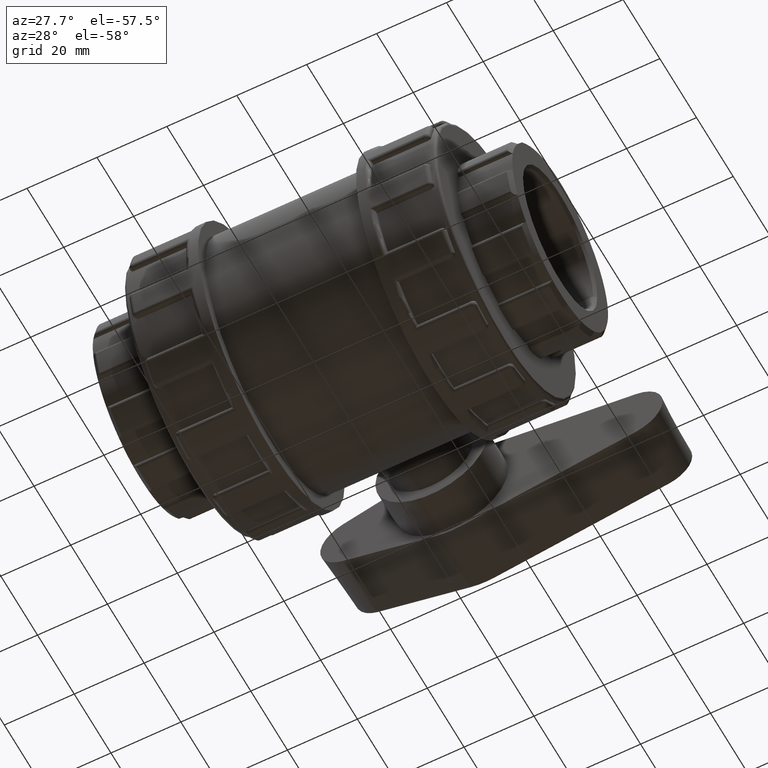
[diagram: clean part render]
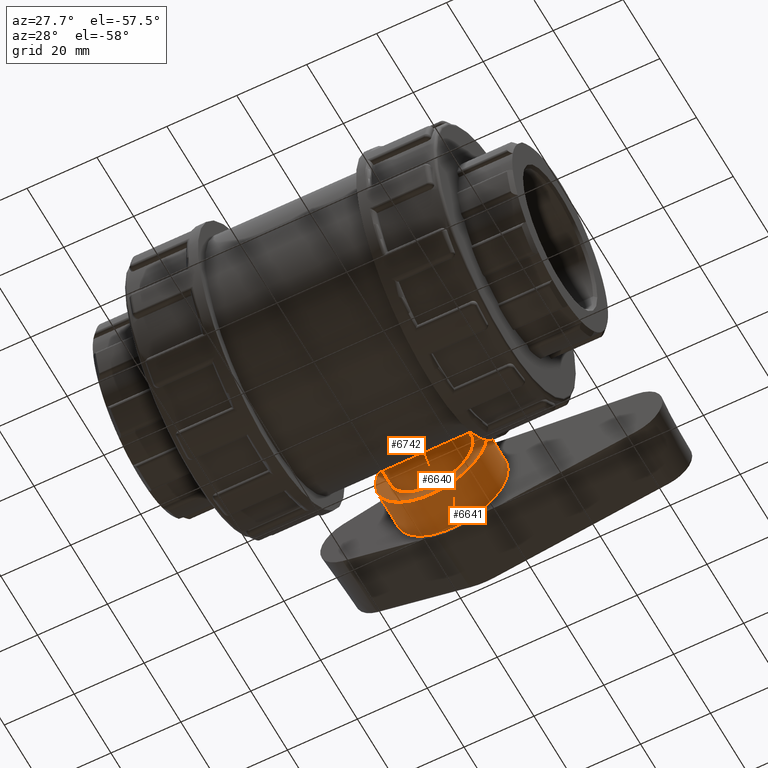
[diagram: same view with one multi-face feature highlighted, each face labeled with its STEP entity id]
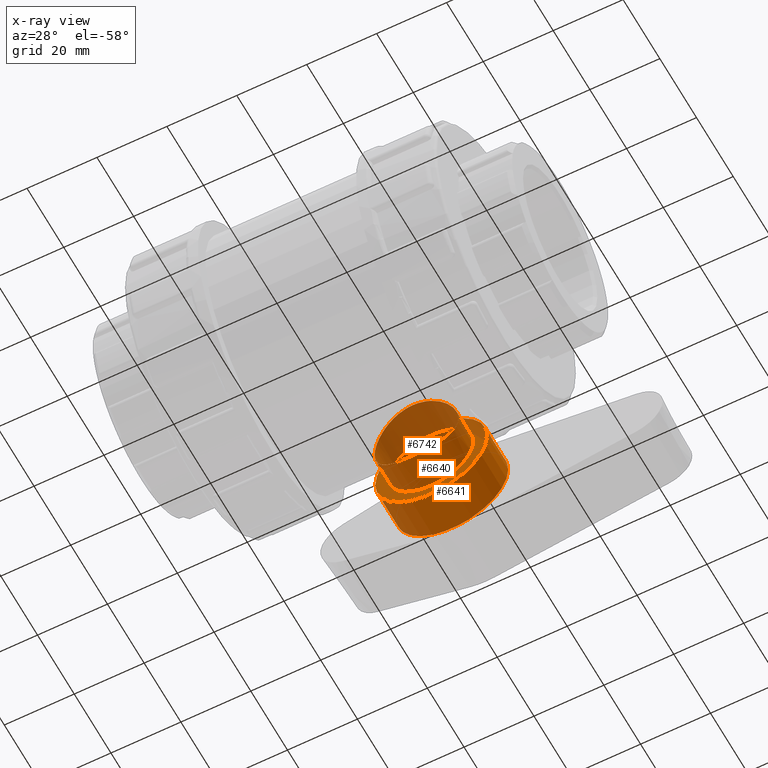
[diagram: x-ray of the same camera — body ghosted, the whole feature saturated]
A machine part, auxiliary view. The highlighted faces form ONE feature: a stepped (counterbored) hole: 2 coaxial cylindrical walls of radii 12 -> 16 mm joined by 1 annular planar shoulder face(s). The faces share edges in the B-rep.
The next image is the same camera in x-ray: the body ghosted and the whole hole feature saturated, so the bore chain is visible through the body.
Their STEP definitions:
[1] entity #6641 (Cylinder):
#203=FACE_BOUND('',#882,.T.);
#444=FACE_OUTER_BOUND('',#881,.T.);
#881=EDGE_LOOP('',(#4428));
#882=EDGE_LOOP('',(#4429));
#2130=CIRCLE('',#7096,16.);
#2131=CIRCLE('',#7102,16.);
#2657=VERTEX_POINT('',#10411);
#2658=VERTEX_POINT('',#10421);
#3318=EDGE_CURVE('',#2657,#2657,#2130,.T.);
#3322=EDGE_CURVE('',#2658,#2658,#2131,.T.);
#4428=ORIENTED_EDGE('',*,*,#3318,.T.);
#4429=ORIENTED_EDGE('',*,*,#3322,.T.);
#6431=CYLINDRICAL_SURFACE('',#7104,16.);
#6641=ADVANCED_FACE('',(#444,#203),#6431,.T.);
#7096=AXIS2_PLACEMENT_3D('',#10412,#8119,#8120);
#7102=AXIS2_PLACEMENT_3D('',#10422,#8134,#8135);
#7104=AXIS2_PLACEMENT_3D('',#10425,#8138,#8139);
#8119=DIRECTION('center_axis',(4.4520067609193E-16,-1.,0.));
#8120=DIRECTION('ref_axis',(-1.,-6.3902435668651E-16,0.));
#8134=DIRECTION('center_axis',(-3.33066907387547E-16,1.,0.));
#8135=DIRECTION('ref_axis',(1.,3.33066907387547E-16,0.));
#8138=DIRECTION('center_axis',(-3.33066907387547E-16,1.,0.));
#8139=DIRECTION('ref_axis',(-1.,-6.3902435668651E-16,0.));
#10411=CARTESIAN_POINT('',(16.,55.5,1.95943487863577E-15));
#10412=CARTESIAN_POINT('Origin',(-3.83026943495679E-15,55.5,0.));
#10421=CARTESIAN_POINT('',(-16.,44.,0.));
#10422=CARTESIAN_POINT('Origin',(-3.74708929979981E-30,44.,0.));
#10425=CARTESIAN_POINT('Origin',(-4.99600361081321E-15,59.,0.));
[2] entity #6742 (Cylinder):
#103=B_SPLINE_CURVE_WITH_KNOTS('',3,(#11388,#11389,#11390,#11391,#11392,
#11393,#11394,#11395,#11396,#11397,#11398,#11399,#11400,#11401,#11402,#11403,
#11404,#11405,#11406,#11407,#11408,#11409,#11410,#11411,#11412,#11413,#11414,
#11415,#11416,#11417,#11418,#11419,#11420,#11421),.UNSPECIFIED.,.T.,.F.,
(4,2,2,2,2,2,2,2,2,2,2,2,2,2,2,2,4),(0.,0.455925817468424,0.911851634936847,
1.36756599365931,1.82328035238178,2.27899471110424,2.73470906982671,3.19063488729513,
3.64656070476356,4.10248652223198,4.5584123397004,5.01412669842287,5.46984105714533,
5.9255554158678,6.38126977459027,6.83719559205869,7.29312140952711),
 .UNSPECIFIED.);
#204=FACE_BOUND('',#984,.T.);
#545=FACE_OUTER_BOUND('',#983,.T.);
#983=EDGE_LOOP('',(#4830));
#984=EDGE_LOOP('',(#4831));
#2132=CIRCLE('',#7103,12.);
#2659=VERTEX_POINT('',#10423);
#2820=VERTEX_POINT('',#11387);
#3323=EDGE_CURVE('',#2659,#2659,#2132,.T.);
#3584=EDGE_CURVE('',#2820,#2820,#103,.T.);
#4830=ORIENTED_EDGE('',*,*,#3323,.T.);
#4831=ORIENTED_EDGE('',*,*,#3584,.F.);
#6512=CYLINDRICAL_SURFACE('',#7345,12.);
#6742=ADVANCED_FACE('',(#545,#204),#6512,.T.);
#7103=AXIS2_PLACEMENT_3D('',#10424,#8136,#8137);
#7345=AXIS2_PLACEMENT_3D('',#11386,#8700,#8701);
#8136=DIRECTION('center_axis',(0.,-1.,0.));
#8137=DIRECTION('ref_axis',(1.,0.,0.));
#8700=DIRECTION('center_axis',(0.,-1.,0.));
#8701=DIRECTION('ref_axis',(1.,0.,0.));
#10423=CARTESIAN_POINT('',(-12.,44.,1.46957615897682E-15));
#10424=CARTESIAN_POINT('Origin',(0.,44.,0.));
#11386=CARTESIAN_POINT('Origin',(0.,44.,0.));
#11387=CARTESIAN_POINT('',(1.11022302462516E-15,33.9411254969543,-12.));
#11388=CARTESIAN_POINT('Ctrl Pts',(2.77555756156289E-16,33.9411254969543,
-12.));
#11389=CARTESIAN_POINT('Ctrl Pts',(1.51975272489475,33.9411254969543,-12.));
#11390=CARTESIAN_POINT('Ctrl Pts',(3.13202368156227,34.053921394455,-11.6938840712257));
#11391=CARTESIAN_POINT('Ctrl Pts',(6.08463815949238,34.451164953148,-10.4658348915162));
#11392=CARTESIAN_POINT('Ctrl Pts',(7.42611698848069,34.7288262727558,-9.54444575999645));
#11393=CARTESIAN_POINT('Ctrl Pts',(9.54395451873703,35.2424773218819,-7.42660822974011));
#11394=CARTESIAN_POINT('Ctrl Pts',(10.465721833399,35.5132434636408,-6.08493374348885));
#11395=CARTESIAN_POINT('Ctrl Pts',(11.6940530496366,35.8944285532147,-3.13159364665029));
#11396=CARTESIAN_POINT('Ctrl Pts',(12.,36.,-1.51904786240822));
#11397=CARTESIAN_POINT('Ctrl Pts',(12.,36.,1.51904786240822));
#11398=CARTESIAN_POINT('Ctrl Pts',(11.6940530496366,35.8944285532147,3.13159364665029));
#11399=CARTESIAN_POINT('Ctrl Pts',(10.465721833399,35.5132434636408,6.08493374348885));
#11400=CARTESIAN_POINT('Ctrl Pts',(9.54395451873703,35.2424773218819,7.42660822974011));
#11401=CARTESIAN_POINT('Ctrl Pts',(7.42611698848069,34.7288262727558,9.54444575999645));
#11402=CARTESIAN_POINT('Ctrl Pts',(6.08463815949238,34.451164953148,10.4658348915162));
#11403=CARTESIAN_POINT('Ctrl Pts',(3.13202368156227,34.053921394455,11.6938840712257));
#11404=CARTESIAN_POINT('Ctrl Pts',(1.51975272489475,33.9411254969543,12.));
#11405=CARTESIAN_POINT('Ctrl Pts',(-1.51975272489474,33.9411254969543,12.));
#11406=CARTESIAN_POINT('Ctrl Pts',(-3.13202368156227,34.053921394455,11.6938840712257));
#11407=CARTESIAN_POINT('Ctrl Pts',(-6.08463815949237,34.451164953148,10.4658348915162));
#11408=CARTESIAN_POINT('Ctrl Pts',(-7.42611698848069,34.7288262727558,9.54444575999645));
#11409=CARTESIAN_POINT('Ctrl Pts',(-9.54395451873702,35.2424773218819,7.42660822974011));
#11410=CARTESIAN_POINT('Ctrl Pts',(-10.465721833399,35.5132434636408,6.08493374348886));
#11411=CARTESIAN_POINT('Ctrl Pts',(-11.6940530496366,35.8944285532147,3.13159364665029));
#11412=CARTESIAN_POINT('Ctrl Pts',(-12.,36.,1.51904786240822));
#11413=CARTESIAN_POINT('Ctrl Pts',(-12.,36.,-1.51904786240822));
#11414=CARTESIAN_POINT('Ctrl Pts',(-11.6940530496366,35.8944285532147,-3.13159364665029));
#11415=CARTESIAN_POINT('Ctrl Pts',(-10.465721833399,35.5132434636408,-6.08493374348885));
#11416=CARTESIAN_POINT('Ctrl Pts',(-9.54395451873703,35.2424773218819,-7.42660822974011));
#11417=CARTESIAN_POINT('Ctrl Pts',(-7.4261169884807,34.7288262727558,-9.54444575999645));
#11418=CARTESIAN_POINT('Ctrl Pts',(-6.08463815949238,34.451164953148,-10.4658348915162));
#11419=CARTESIAN_POINT('Ctrl Pts',(-3.13202368156227,34.053921394455,-11.6938840712257));
#11420=CARTESIAN_POINT('Ctrl Pts',(-1.51975272489474,33.9411254969543,-12.));
#11421=CARTESIAN_POINT('Ctrl Pts',(0.,33.9411254969543,-12.));
[3] entity #6640 (Plane):
#202=FACE_BOUND('',#880,.T.);
#235=PLANE('',#7101);
#443=FACE_OUTER_BOUND('',#879,.T.);
#879=EDGE_LOOP('',(#4426));
#880=EDGE_LOOP('',(#4427));
#2131=CIRCLE('',#7102,16.);
#2132=CIRCLE('',#7103,12.);
#2658=VERTEX_POINT('',#10421);
#2659=VERTEX_POINT('',#10423);
#3322=EDGE_CURVE('',#2658,#2658,#2131,.T.);
#3323=EDGE_CURVE('',#2659,#2659,#2132,.T.);
#4426=ORIENTED_EDGE('',*,*,#3322,.F.);
#4427=ORIENTED_EDGE('',*,*,#3323,.F.);
#6640=ADVANCED_FACE('',(#443,#202),#235,.T.);
#7101=AXIS2_PLACEMENT_3D('',#10420,#8132,#8133);
#7102=AXIS2_PLACEMENT_3D('',#10422,#8134,#8135);
#7103=AXIS2_PLACEMENT_3D('',#10424,#8136,#8137);
#8132=DIRECTION('center_axis',(3.33066907387547E-16,-1.,0.));
#8133=DIRECTION('ref_axis',(0.,0.,-1.));
#8134=DIRECTION('center_axis',(-3.33066907387547E-16,1.,0.));
#8135=DIRECTION('ref_axis',(1.,3.33066907387547E-16,0.));
#8136=DIRECTION('center_axis',(0.,-1.,0.));
#8137=DIRECTION('ref_axis',(1.,0.,0.));
#10420=CARTESIAN_POINT('Origin',(-16.,44.,0.));
#10421=CARTESIAN_POINT('',(-16.,44.,0.));
#10422=CARTESIAN_POINT('Origin',(-3.74708929979981E-30,44.,0.));
#10423=CARTESIAN_POINT('',(-12.,44.,1.46957615897682E-15));
#10424=CARTESIAN_POINT('Origin',(0.,44.,0.));